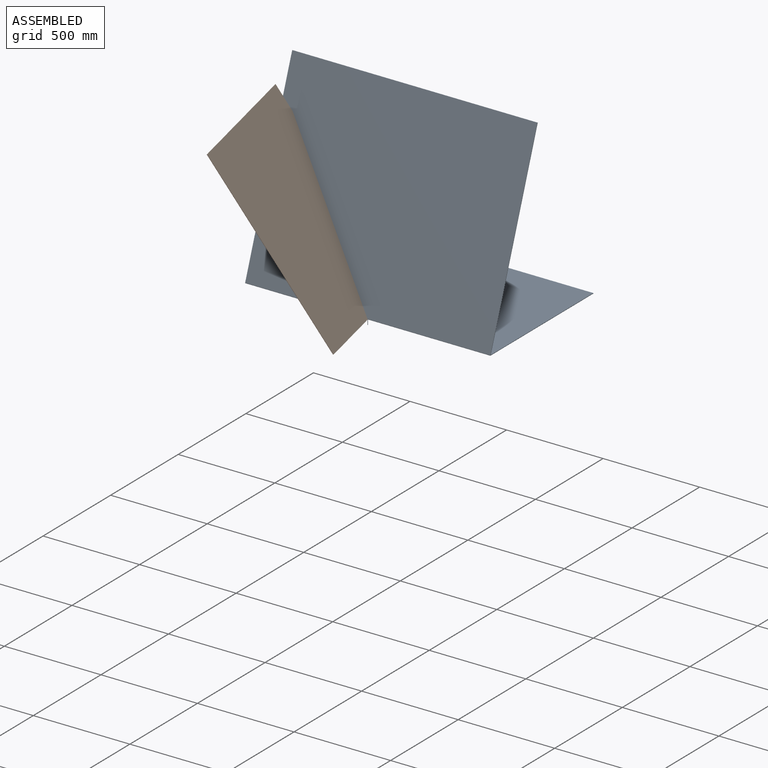
[diagram: assembled view]
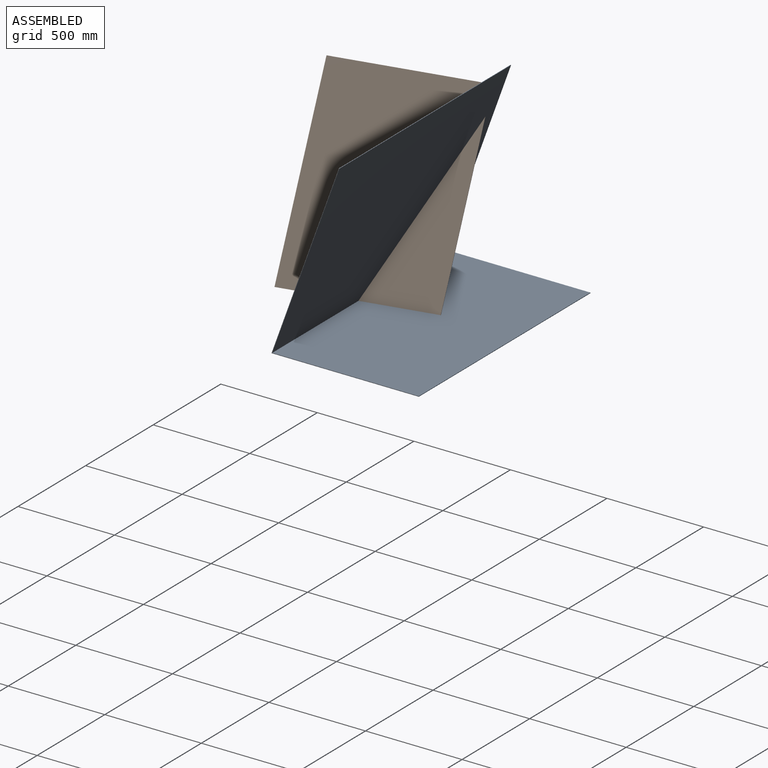
[diagram: assembled view, second angle]
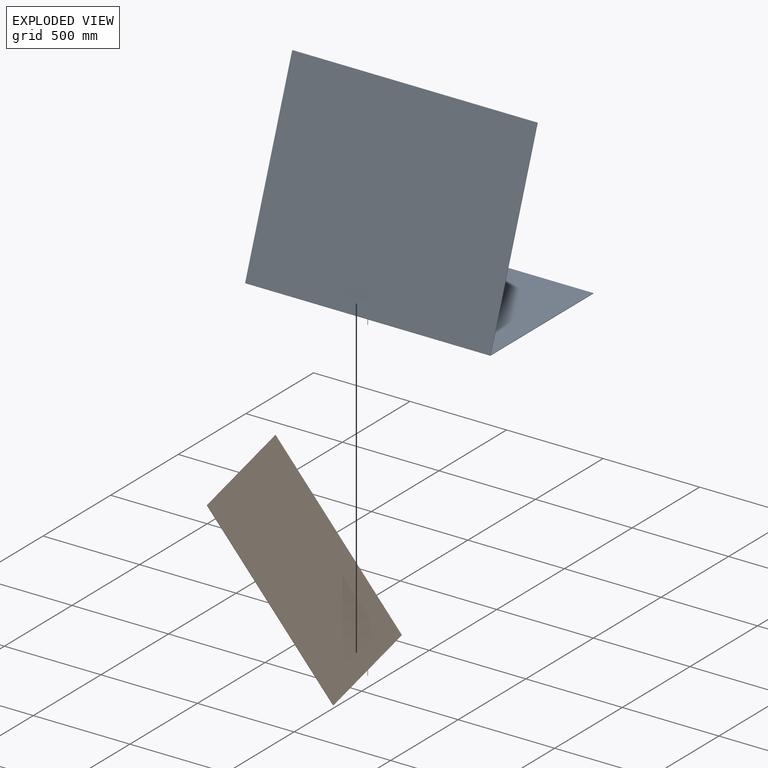
[diagram: exploded view]
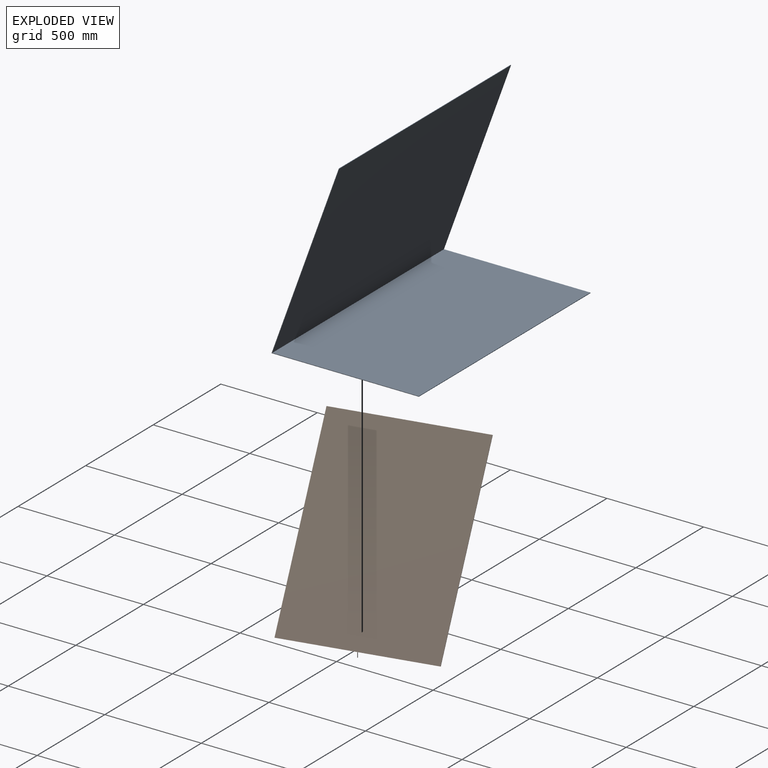
[diagram: exploded view, second angle]
ASSEMBLY  parts=2 mates=2
PART A: 12 faces, bbox 1270x763.3x983.5 mm
  f0: plane 1270x1.85mm, normal (0,-1,0), area 2350.8mm2, adj f1,f6,f7,f8,f11
  f1: plane 1270x762mm, normal (0,0,-1), area 967737.5mm2, adj f0,f2,f7,f8,f9
  f2: plane 1270x2.54mm, normal (0,1,0), area 3225.8mm2, adj f1,f3,f7,f8
  f3: plane 1270x759.05mm, normal (0,0,1), area 963988.7mm2, adj f2,f4,f7,f8
  f4: plane 1270x954.73mm, normal (0,0.94,-0.34), area 1290320mm2, adj f3,f5,f7,f8
  f5: plane 1270x2.39mm, normal (0,0.34,0.94), area 3225.8mm2, adj f4,f6,f7,f8
  f6: plane 1270x956.29mm, normal (0,-0.94,0.34), area 1292425.2mm2, adj f0,f5,f7,f8
  f7: plane 958.14x762mm, normal (1,0,0), area 4517.2mm2, adj f0,f1,f2,f3,f4,f5,f6
  f8: plane 958.14x762mm, normal (-1,0,0), area 4517.2mm2, adj f0,f1,f2,f3,f4,f5,f6
  f9: cylinder r=1.27mm len=25.4mm, axis (0,0,1), area 202.7mm2, adj f1,f10,f11
  f10: plane 2.54x2.54mm, normal (0,0,-1), area 5.1mm2, adj f9
  f11: plane 2.54x1.27mm, normal (0,0,1), area 2.5mm2, adj f0,f9
PART B: 9 faces, bbox 762x583x859.8 mm
  f0: plane 2.54x1.27mm, normal (0,0,1), area 2.5mm2, adj f1,f6
  f1: cylinder r=1.27mm len=25.4mm, axis (0,0,1), area 202.7mm2, adj f0,f2,f3
  f2: plane 2.54x2.54mm, normal (0,0,-1), area 5.1mm2, adj f1
  f3: plane 762x3.09mm, normal (0,0,-1), area 2354.2mm2, adj f1,f4,f6,f7,f8
  f4: plane 832.96x762mm, normal (0,0.82,-0.57), area 772847.4mm2, adj f3,f5,f7,f8
  f5: plane 762x2.09mm, normal (0,0.57,0.82), area 1935.5mm2, adj f4,f6,f7,f8
  f6: plane 834.4x762mm, normal (0,-0.82,0.57), area 774192mm2, adj f0,f3,f5,f7,f8
  f7: plane 834.4x581.76mm, normal (1,0,0), area 2578.4mm2, adj f3,f4,f5,f6
  f8: plane 834.4x581.76mm, normal (-1,0,0), area 2578.4mm2, adj f3,f4,f5,f6
PLACE A t=(-29.73,88,120.35)mm fixed
PLACE B rot(axis=(0,0,1),102.6deg) t=(-29.73,88,120.35)mm
MATE cylindrical B.f1 <-> A.f9  axis (0,0,-1) through (-29.73,88,94.95)mm
MATE planar B.f1 <-> A.f9  axis (0,0,-1) through (-29.73,88,94.95)mm
